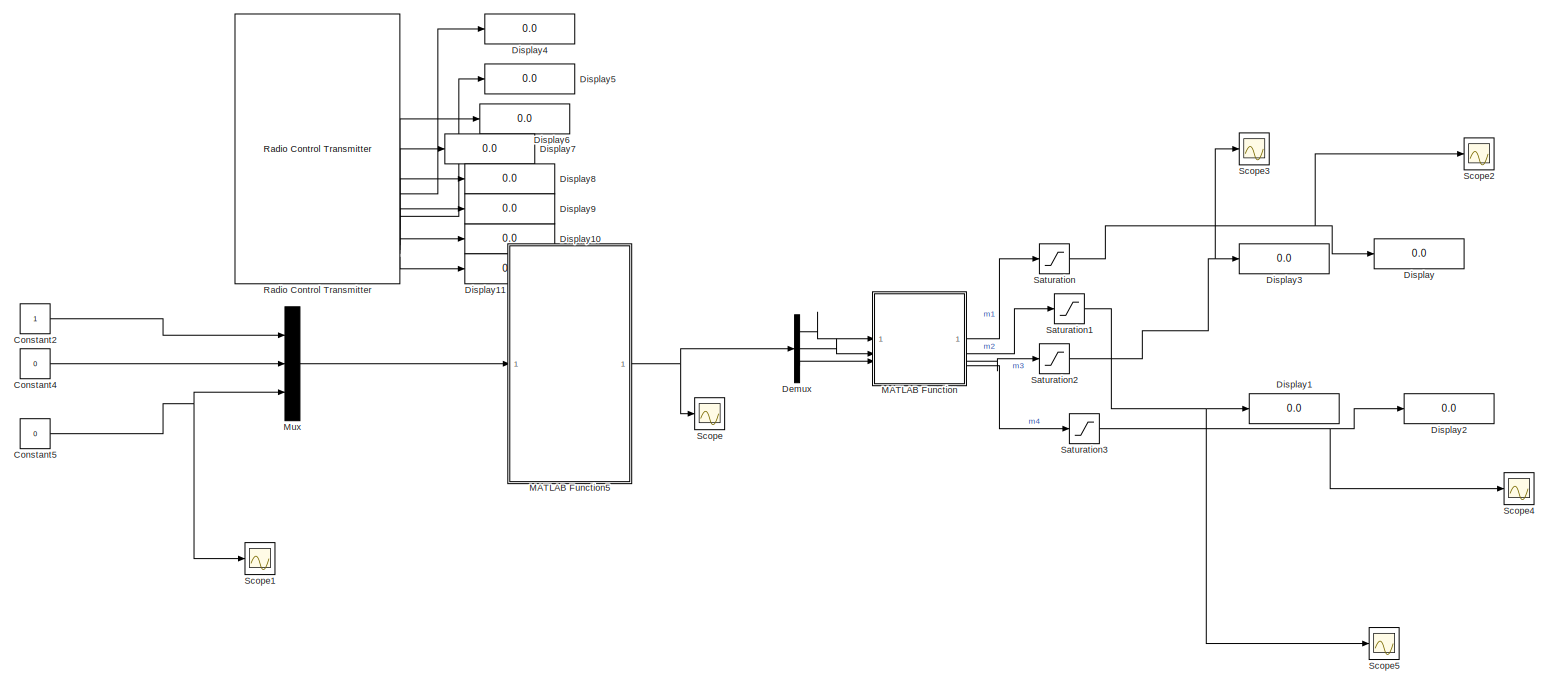
[diagram: root canvas - part 1/1, most of the canvas]
MODEL slx_7ac94f534ce5
KIND model
CONFIG AbsTol = auto
CONFIG EnableMultiTasking = on
CONFIG FixedStep = 0.001
CONFIG MaxStep = auto
CONFIG MinStep = auto
CONFIG RelTol = 1e-3
CONFIG SampleTimeConstraint = Unconstrained
CONFIG SolverName = FixedStepAuto
CONFIG StartTime = 0.0
CONFIG StopTime = inf
WORKSPACE source: mxarray member
WORKSPACE F = [-0.7032 0.2778 -0.2558 -0.11613436 -0.9531108 0.18138056 0.946468571296 1.6173892229 0.064936415208 -1.4745115325 -2.02779359087 -0.323507655319 ... (45 elements, 15x3)]
WORKSPACE G = [4.2242 -0.011 0.4464 -2.17543118 1.79886694 -1.10591356 -1.45160837282 -4.75988817257 0.534272669204 4.68314952234 7.32813659636 0.568808239237 ... (225 elements, 15x15)]
WORKSPACE H = [22131.1173138 20323.7560581 -1531.64777338 -13284.6672436 -19882.239349 -1189.60000517 7040.1548235 16995.1890063 2962.85657152 -1788.53809124 -12245.5245907 -3182.80208225 ... (225 elements, 15x15)]
WORKSPACE Pc = [-4.2242 0.011 -0.4464 4.2242 -0.011 0.4464 2.17543118 -1.79886694 1.10591356 -2.17543118 1.79886694 -1.10591356 ... (1020 elements, 68x15)]
WORKSPACE Qvec = [50 0 0 0 0 0 0 0 0 0 0 0 ... (225 elements, 15x15)]
WORKSPACE Sc = [-0.7032 0.2778 -0.2558 0.7032 -0.2778 0.2558 -0.11613436 -0.9531108 0.18138056 0.11613436 0.9531108 -0.18138056 ... (204 elements, 68x3)]
WORKSPACE m = 3
WORKSPACE nu = 15
WORKSPACE qc = [1 1 0.5 1 1 0.5 1 1 0.5 1 1 0.5 ... (68 elements, 68x1)]
BLOCK [Constant] Constant2
  Commented = on
BLOCK [Constant] Constant4
  Commented = on
  Value = 0
BLOCK [Constant] Constant5
  Commented = on
  Value = 0
BLOCK [Demux] Demux
  Commented = on
  Outputs = 3
BLOCK [Display] Display
  Commented = on
  Decimation = 1
BLOCK [Display] Display1
  Commented = on
  Decimation = 1
BLOCK [Display] Display10
  Decimation = 1
BLOCK [Display] Display11
  Decimation = 1
BLOCK [Display] Display2
  Commented = on
  Decimation = 1
BLOCK [Display] Display3
  Commented = on
  Decimation = 1
BLOCK [Display] Display4
  Decimation = 1
BLOCK [Display] Display5
  Decimation = 1
BLOCK [Display] Display6
  Decimation = 1
BLOCK [Display] Display7
  Decimation = 1
BLOCK [Display] Display8
  Decimation = 1
BLOCK [Display] Display9
  Decimation = 1
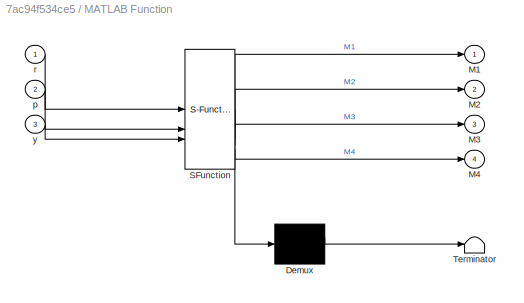
BLOCK [SubSystem] MATLAB Function
  Commented = on
  ErrorFcn = Stateflow.Translate.translate
  PermitHierarchicalResolution = ExplicitOnly
  SFBlockType = MATLAB Function
  SystemSampleTime = 0.0201
  TreatAsAtomicUnit = on
BLOCK [Demux] MATLAB Function/ Demux 
  Outputs = 1
BLOCK [S-Function] MATLAB Function/ SFunction 
  EnableBusSupport = off
  FunctionName = sf_sfun
  PortCounts = [3 5]
  SFcnIsStateOwnerBlock = off
  SFunctionDeploymentMode = off
  Tag = Stateflow S-Function 2
BLOCK [Terminator] MATLAB Function/ Terminator 
BLOCK [Outport] MATLAB Function/M1
  VectorParamsAs1DForOutWhenUnconnected = off
BLOCK [Outport] MATLAB Function/M2
  Port = 2
BLOCK [Outport] MATLAB Function/M3
  Port = 3
BLOCK [Outport] MATLAB Function/M4
  Port = 4
BLOCK [Inport] MATLAB Function/p
  Port = 2
BLOCK [Inport] MATLAB Function/r
BLOCK [Inport] MATLAB Function/y
  Port = 3
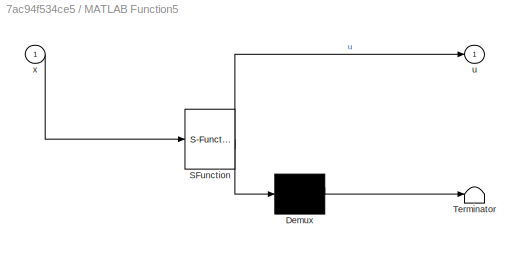
BLOCK [SubSystem] MATLAB Function5
  Commented = on
  ErrorFcn = Stateflow.Translate.translate
  PermitHierarchicalResolution = ExplicitOnly
  SFBlockType = MATLAB Function
  SystemSampleTime = 0.0201
  TreatAsAtomicUnit = on
BLOCK [Demux] MATLAB Function5/ Demux 
  Outputs = 1
BLOCK [S-Function] MATLAB Function5/ SFunction 
  EnableBusSupport = off
  FunctionName = sf_sfun
  Parameters = F,G,H,Pc,Qvec,Sc,qc
  PortCounts = [1 2]
  SFcnIsStateOwnerBlock = off
  SFunctionDeploymentMode = off
  Tag = Stateflow S-Function 6
BLOCK [Terminator] MATLAB Function5/ Terminator 
BLOCK [Outport] MATLAB Function5/u
  VectorParamsAs1DForOutWhenUnconnected = off
BLOCK [Inport] MATLAB Function5/x
BLOCK [Mux] Mux
  Commented = on
  DisplayOption = bar
  Inputs = 3
BLOCK [Reference] Radio Control Transmitter  REF=px4Sensorslib/Radio Control Transmitter
  SourceBlock = px4Sensorslib/Radio Control Transmitter
  SourceType = PX4 Radio Control Transmitter
BLOCK [Saturate] Saturation
  Commented = on
  LowerLimit = 0
  UpperLimit = 1
BLOCK [Saturate] Saturation1
  Commented = on
  LowerLimit = 0
  UpperLimit = 1
BLOCK [Saturate] Saturation2
  Commented = on
  LowerLimit = 0
  UpperLimit = 1
BLOCK [Saturate] Saturation3
  Commented = on
  LowerLimit = 0
  UpperLimit = 1
BLOCK [Scope] Scope
  ActiveDisplayYMaximum = 0.097577906132606917
  ActiveDisplayYMinimum = -0.053985449326909025
  Commented = on
  Floating = off
  GraphicalSettings = {"AxesScalingProperties":{"AlignXAxis":"Center","AlignYAxis":"Center","AutoScaleXAxisLimits":false,"AxesScaling":"Manual","AxesScalingNumUpdates":10,"ExpandOnly":true,"ScaleAxesLimitsAtStop":false,"XAxisDataRange":100,"YAxisDataRange":80},"DisplayProperties":{"ColorOrder":["auto","auto","auto","auto","auto","auto","auto","auto","auto","auto","auto","auto","auto","auto","auto","auto","auto","auto",...<+2276ch>
  MultipleDisplayCache = [{"MaxYLimMag":10,"MaxYLimReal":0.097577906132606917,"MinYLimMag":0,"MinYLimReal":-0.053985449326909025,"PlotAsMagnitudePhase":false,"ShowGrid":true,"ShowLegend":true,"Title":"%<SignalLabel>","YLabel":""}]
  NumInputPorts = 1
  ScopeFrameLocation = window
  ShowLegend = on
  WasSavedAsWebScope = on
  WindowPosition = [1319.000000,239.000000,560.000000,420.000000,]
BLOCK [Scope] Scope1
  Commented = on
  DataLoggingVariableName = ScopeData1
  Floating = off
  GraphicalSettings = {"GraphicalSettings":{"LegacySettings":true,"Style":{"Style":{"PlotType":"Auto"}}}}
  NumInputPorts = 1
  ScopeFrameLocation = window
  WasSavedAsWebScope = on
  WindowPosition = [1947.000000,365.000000,560.000000,420.000000,]
BLOCK [Scope] Scope2
  Commented = on
  DataLoggingVariableName = ScopeData2
  Floating = off
  GraphicalSettings = {"GraphicalSettings":{"LegacySettings":true,"Style":{"Style":{"PlotType":"Auto"}}}}
  NumInputPorts = 1
  ScopeFrameLocation = window
  WasSavedAsWebScope = on
  WindowPosition = [3094.000000,516.000000,560.000000,420.000000,]
BLOCK [Scope] Scope3
  Commented = on
  DataLoggingVariableName = ScopeData3
  Floating = off
  GraphicalSettings = {"GraphicalSettings":{"LegacySettings":true,"Style":{"Style":{"PlotType":"Auto"}}}}
  NumInputPorts = 1
  ScopeFrameLocation = window
  WasSavedAsWebScope = on
  WindowPosition = [2378.000000,510.000000,560.000000,420.000000,]
BLOCK [Scope] Scope4
  Commented = on
  DataLoggingVariableName = ScopeData4
  Floating = off
  GraphicalSettings = {"GraphicalSettings":{"LegacySettings":true,"Style":{"Style":{"PlotType":"Auto"}}}}
  NumInputPorts = 1
  ScopeFrameLocation = window
  WasSavedAsWebScope = on
  WindowPosition = [3129.000000,16.000000,560.000000,420.000000,]
BLOCK [Scope] Scope5
  Commented = on
  DataLoggingVariableName = ScopeData5
  Floating = off
  GraphicalSettings = {"GraphicalSettings":{"LegacySettings":true,"Style":{"Style":{"PlotType":"Auto"}}}}
  NumInputPorts = 1
  ScopeFrameLocation = window
  WasSavedAsWebScope = on
  WindowPosition = [2402.000000,65.000000,560.000000,420.000000,]
LINE Constant2:1 -> Mux:1
LINE Constant4:1 -> Mux:2
NET Constant5:1 -> Mux:3, Scope1:1
LINE Demux:1 -> MATLAB Function:1
LINE Demux:2 -> MATLAB Function:2
LINE Demux:3 -> MATLAB Function:3
NET MATLAB Function5:1 -> Demux:1, Scope:1
LINE MATLAB Function:1 -> Saturation:1
LINE MATLAB Function:2 -> Saturation1:1
LINE MATLAB Function:3 -> Saturation2:1
LINE MATLAB Function:4 -> Saturation3:1
LINE Mux:1 -> MATLAB Function5:1
LINE Radio Control Transmitter:2 -> Display4:1
LINE Radio Control Transmitter:3 -> Display5:1
LINE Radio Control Transmitter:4 -> Display6:1
LINE Radio Control Transmitter:5 -> Display7:1
LINE Radio Control Transmitter:6 -> Display8:1
LINE Radio Control Transmitter:7 -> Display9:1
LINE Radio Control Transmitter:8 -> Display10:1
LINE Radio Control Transmitter:9 -> Display11:1
NET Saturation1:1 -> Display1:1, Scope5:1
NET Saturation2:1 -> Display3:1, Scope3:1
NET Saturation3:1 -> Display2:1, Scope4:1
NET Saturation:1 -> Display:1, Scope2:1
note: NET lines group one-source signal fan-out (src -> all destinations, sorted); 1:1 wires keep LINE
CHART MATLAB Function states=1 transitions=1
  STATE_LABEL 'eML_blk_kernel()'
  STATE_LABEL 'SCRIPT:\nfunction [M1,M2,M3,M4] = fcn( r, p, y)\n% t: thrust\n% r: roll\n% p: pitch\n% y: yaw\npersistent trim mixer thrust\n% M1 = t + r + p - y;\n% M2 = t - r - p - y;\n% M3 = t - r + p + y;\n% M4 = t + r - p + y;\ntrim = [0.2691;0.3501;0.2498;0.3462];\nthrust = 0.314;\nu = [r;p;y; thrust];\nmixer = [1 -1 -1 1;\n        1 -1 1 -1;\n        1 1 -1 -1\n        1 1 1 1];\nM = mixer\\u;\nM1= M(1,1)+trim(1,1);\nM2= M(2,1...<+57ch>'
CHART MATLAB Function5 states=1 transitions=1
  STATE_LABEL 'eML_blk_kernel()'
  STATE_LABEL "SCRIPT:\nfunction u = mpc_function(x, H, F, Qvec, G, Pc, qc, Sc)\npersistent opts x0 u_prev\nx = double(x);\nif isempty(u_prev)\n    u_prev = zeros(3,1,'double');\nend\n\nif isempty(x0)\n    x0 = zeros(15,1,'double');\nend\n% uvec = zeros(nu,1);\n% === Construcción del QP ===\nf = (2*x'*F'*Qvec*G)';\n\n% Resolver QP\nif isempty(opts)\nopts = optimoptions('quadprog', 'Algorithm','active-set','Display','off');\nend\n[...<+197ch>"
CHART  states=0 transitions=0
CHART  states=0 transitions=0
